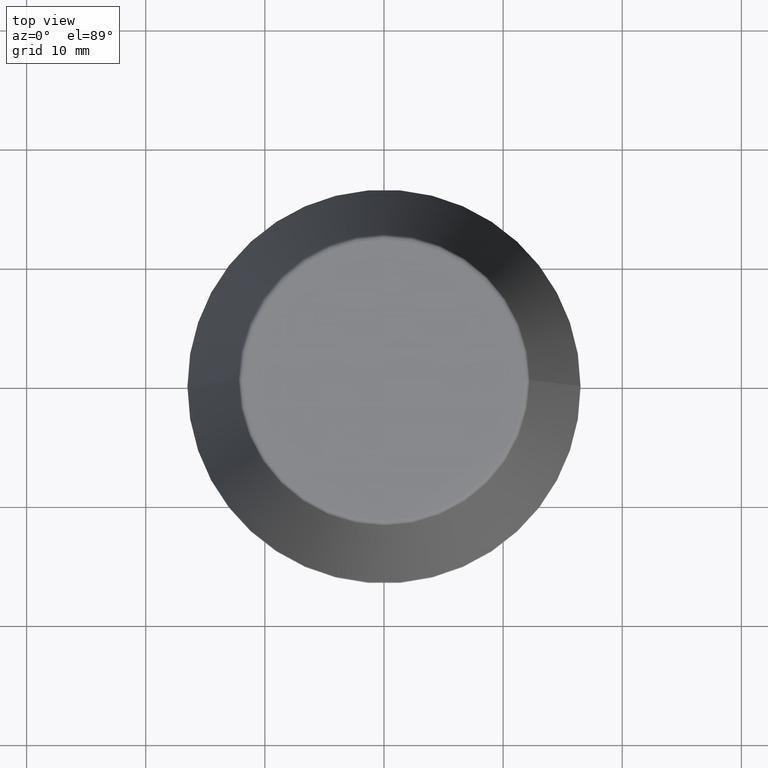
[diagram: clean part render]
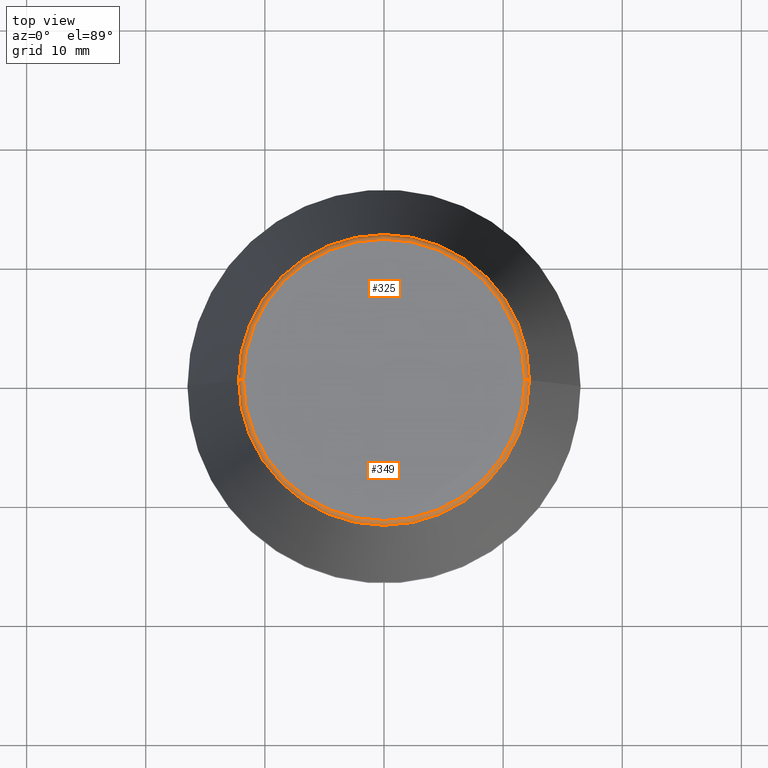
[diagram: same view with one multi-face feature highlighted, each face labeled with its STEP entity id]
A machine part, top view. The highlighted faces form ONE feature: a constant-radius fillet chain: 2 tangent blend faces with common blend radius 0.4 mm. The faces share edges in the B-rep.
Their STEP definitions:
[1] entity #325 (Torus):
#20 = VERTEX_POINT ( 'NONE', #53 ) ;
#31 = EDGE_CURVE ( 'NONE', #331, #323, #139, .T. ) ;
#32 = CARTESIAN_POINT ( 'NONE',  ( -12.20600611160694300, 0.0000000000000000000, 39.65566924038402900 ) ) ;
#42 = DIRECTION ( 'NONE',  ( -0.0000000000000000000, -0.0000000000000000000, 1.000000000000000000 ) ) ;
#43 = TOROIDAL_SURFACE ( 'NONE', #321, 11.80989888411031400, 0.4000000000000026900 ) ;
#53 = CARTESIAN_POINT ( 'NONE',  ( 11.80989888411031400, 0.0000000000000000000, 40.00000000000000700 ) ) ;
#54 = CARTESIAN_POINT ( 'NONE',  ( -11.80989888411031400, 1.446295486667959300E-015, 39.60000000000000100 ) ) ;
#57 = FACE_OUTER_BOUND ( 'NONE', #187, .T. ) ;
#64 = ORIENTED_EDGE ( 'NONE', *, *, #31, .T. ) ;
#71 = AXIS2_PLACEMENT_3D ( 'NONE', #180, #42, #171 ) ;
#75 = CARTESIAN_POINT ( 'NONE',  ( -11.80989888411031400, 1.470550059081603400E-015, 40.00000000000000700 ) ) ;
#96 = ORIENTED_EDGE ( 'NONE', *, *, #165, .F. ) ;
#120 = AXIS2_PLACEMENT_3D ( 'NONE', #54, #200, #376 ) ;
#128 = DIRECTION ( 'NONE',  ( -0.0000000000000000000, -0.0000000000000000000, 1.000000000000000000 ) ) ;
#132 = CIRCLE ( 'NONE', #71, 11.80989888411031400 ) ;
#139 = CIRCLE ( 'NONE', #251, 12.20600611160694300 ) ;
#147 = CARTESIAN_POINT ( 'NONE',  ( 11.80989888411031400, 0.0000000000000000000, 39.60000000000000100 ) ) ;
#153 = CIRCLE ( 'NONE', #186, 0.4000000000000045200 ) ;
#165 = EDGE_CURVE ( 'NONE', #20, #225, #132, .T. ) ;
#168 = CARTESIAN_POINT ( 'NONE',  ( 0.0000000000000000000, 0.0000000000000000000, 39.60000000000000100 ) ) ;
#169 = EDGE_CURVE ( 'NONE', #331, #20, #153, .T. ) ;
#171 = DIRECTION ( 'NONE',  ( 1.000000000000000000, 0.0000000000000000000, 0.0000000000000000000 ) ) ;
#180 = CARTESIAN_POINT ( 'NONE',  ( 0.0000000000000000000, 0.0000000000000000000, 40.00000000000000700 ) ) ;
#186 = AXIS2_PLACEMENT_3D ( 'NONE', #147, #270, #369 ) ;
#187 = EDGE_LOOP ( 'NONE', ( #64, #260, #96, #216 ) ) ;
#191 = DIRECTION ( 'NONE',  ( -0.0000000000000000000, -0.0000000000000000000, 1.000000000000000000 ) ) ;
#200 = DIRECTION ( 'NONE',  ( 1.224646799147353200E-016, 1.000000000000000000, 0.0000000000000000000 ) ) ;
#216 = ORIENTED_EDGE ( 'NONE', *, *, #169, .F. ) ;
#225 = VERTEX_POINT ( 'NONE', #75 ) ;
#251 = AXIS2_PLACEMENT_3D ( 'NONE', #351, #128, #317 ) ;
#260 = ORIENTED_EDGE ( 'NONE', *, *, #357, .T. ) ;
#268 = CARTESIAN_POINT ( 'NONE',  ( 12.20600611160694300, 1.757755848304969800E-015, 39.65566924038402900 ) ) ;
#270 = DIRECTION ( 'NONE',  ( 0.0000000000000000000, -1.000000000000000000, 0.0000000000000000000 ) ) ;
#271 = DIRECTION ( 'NONE',  ( 1.000000000000000000, 0.0000000000000000000, 0.0000000000000000000 ) ) ;
#297 = CIRCLE ( 'NONE', #120, 0.4000000000000028000 ) ;
#317 = DIRECTION ( 'NONE',  ( 1.000000000000000000, 0.0000000000000000000, 0.0000000000000000000 ) ) ;
#321 = AXIS2_PLACEMENT_3D ( 'NONE', #168, #191, #271 ) ;
#323 = VERTEX_POINT ( 'NONE', #32 ) ;
#325 = ADVANCED_FACE ( 'NONE', ( #57 ), #43, .T. ) ;
#331 = VERTEX_POINT ( 'NONE', #268 ) ;
#351 = CARTESIAN_POINT ( 'NONE',  ( 0.0000000000000000000, 0.0000000000000000000, 39.65566924038402900 ) ) ;
#357 = EDGE_CURVE ( 'NONE', #323, #225, #297, .T. ) ;
#369 = DIRECTION ( 'NONE',  ( 0.0000000000000000000, 0.0000000000000000000, -1.000000000000000000 ) ) ;
#376 = DIRECTION ( 'NONE',  ( -1.000000000000000000, 1.224646799147352500E-016, 0.0000000000000000000 ) ) ;
[2] entity #349 (Torus):
#6 = ORIENTED_EDGE ( 'NONE', *, *, #182, .T. ) ;
#9 = ORIENTED_EDGE ( 'NONE', *, *, #169, .T. ) ;
#15 = TOROIDAL_SURFACE ( 'NONE', #104, 11.80989888411031400, 0.4000000000000026900 ) ;
#20 = VERTEX_POINT ( 'NONE', #53 ) ;
#32 = CARTESIAN_POINT ( 'NONE',  ( -12.20600611160694300, 0.0000000000000000000, 39.65566924038402900 ) ) ;
#36 = CARTESIAN_POINT ( 'NONE',  ( 0.0000000000000000000, 0.0000000000000000000, 40.00000000000000700 ) ) ;
#53 = CARTESIAN_POINT ( 'NONE',  ( 11.80989888411031400, 0.0000000000000000000, 40.00000000000000700 ) ) ;
#54 = CARTESIAN_POINT ( 'NONE',  ( -11.80989888411031400, 1.446295486667959300E-015, 39.60000000000000100 ) ) ;
#61 = DIRECTION ( 'NONE',  ( 1.000000000000000000, 0.0000000000000000000, 0.0000000000000000000 ) ) ;
#62 = AXIS2_PLACEMENT_3D ( 'NONE', #36, #173, #61 ) ;
#75 = CARTESIAN_POINT ( 'NONE',  ( -11.80989888411031400, 1.470550059081603400E-015, 40.00000000000000700 ) ) ;
#104 = AXIS2_PLACEMENT_3D ( 'NONE', #237, #196, #273 ) ;
#120 = AXIS2_PLACEMENT_3D ( 'NONE', #54, #200, #376 ) ;
#126 = DIRECTION ( 'NONE',  ( 1.000000000000000000, 0.0000000000000000000, 0.0000000000000000000 ) ) ;
#142 = CARTESIAN_POINT ( 'NONE',  ( 0.0000000000000000000, 0.0000000000000000000, 39.65566924038402900 ) ) ;
#147 = CARTESIAN_POINT ( 'NONE',  ( 11.80989888411031400, 0.0000000000000000000, 39.60000000000000100 ) ) ;
#153 = CIRCLE ( 'NONE', #186, 0.4000000000000045200 ) ;
#169 = EDGE_CURVE ( 'NONE', #331, #20, #153, .T. ) ;
#173 = DIRECTION ( 'NONE',  ( -0.0000000000000000000, -0.0000000000000000000, 1.000000000000000000 ) ) ;
#182 = EDGE_CURVE ( 'NONE', #323, #331, #366, .T. ) ;
#186 = AXIS2_PLACEMENT_3D ( 'NONE', #147, #270, #369 ) ;
#192 = DIRECTION ( 'NONE',  ( -0.0000000000000000000, -0.0000000000000000000, 1.000000000000000000 ) ) ;
#196 = DIRECTION ( 'NONE',  ( -0.0000000000000000000, -0.0000000000000000000, 1.000000000000000000 ) ) ;
#200 = DIRECTION ( 'NONE',  ( 1.224646799147353200E-016, 1.000000000000000000, 0.0000000000000000000 ) ) ;
#204 = CIRCLE ( 'NONE', #62, 11.80989888411031400 ) ;
#225 = VERTEX_POINT ( 'NONE', #75 ) ;
#233 = ORIENTED_EDGE ( 'NONE', *, *, #359, .F. ) ;
#237 = CARTESIAN_POINT ( 'NONE',  ( 0.0000000000000000000, 0.0000000000000000000, 39.60000000000000100 ) ) ;
#256 = AXIS2_PLACEMENT_3D ( 'NONE', #142, #192, #126 ) ;
#265 = FACE_OUTER_BOUND ( 'NONE', #322, .T. ) ;
#268 = CARTESIAN_POINT ( 'NONE',  ( 12.20600611160694300, 1.757755848304969800E-015, 39.65566924038402900 ) ) ;
#270 = DIRECTION ( 'NONE',  ( 0.0000000000000000000, -1.000000000000000000, 0.0000000000000000000 ) ) ;
#273 = DIRECTION ( 'NONE',  ( 1.000000000000000000, 0.0000000000000000000, 0.0000000000000000000 ) ) ;
#278 = ORIENTED_EDGE ( 'NONE', *, *, #357, .F. ) ;
#297 = CIRCLE ( 'NONE', #120, 0.4000000000000028000 ) ;
#322 = EDGE_LOOP ( 'NONE', ( #278, #6, #9, #233 ) ) ;
#323 = VERTEX_POINT ( 'NONE', #32 ) ;
#331 = VERTEX_POINT ( 'NONE', #268 ) ;
#349 = ADVANCED_FACE ( 'NONE', ( #265 ), #15, .T. ) ;
#357 = EDGE_CURVE ( 'NONE', #323, #225, #297, .T. ) ;
#359 = EDGE_CURVE ( 'NONE', #225, #20, #204, .T. ) ;
#366 = CIRCLE ( 'NONE', #256, 12.20600611160694300 ) ;
#369 = DIRECTION ( 'NONE',  ( 0.0000000000000000000, 0.0000000000000000000, -1.000000000000000000 ) ) ;
#376 = DIRECTION ( 'NONE',  ( -1.000000000000000000, 1.224646799147352500E-016, 0.0000000000000000000 ) ) ;